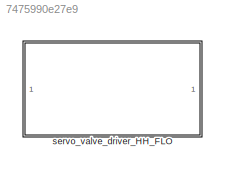
MODEL slx_7475990e27e9
KIND library
CONFIG AbsTol = auto
CONFIG EnableMultiTasking = off
CONFIG FixedStep = auto
CONFIG MaxStep = auto
CONFIG MinStep = auto
CONFIG RelTol = 1e-3
CONFIG SampleTimeConstraint = Unconstrained
CONFIG SolverName = VariableStepAuto
CONFIG StartTime = 0.0
CONFIG StopTime = 10.0
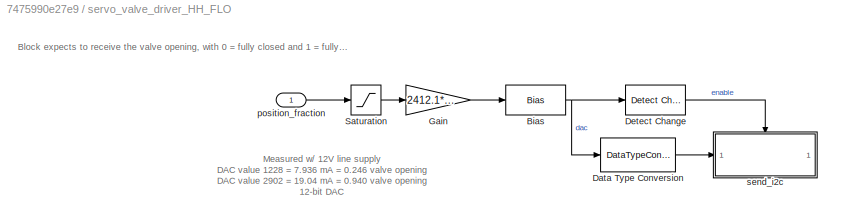
BLOCK [SubSystem] servo_valve_driver_HH_FLO
BLOCK [Bias] servo_valve_driver_HH_FLO/Bias
  Bias = 634.6225
  SaturateOnIntegerOverflow = off
BLOCK [DataTypeConversion] servo_valve_driver_HH_FLO/Data Type Conversion
  OutDataTypeStr = uint16
  RndMeth = Floor
  SaturateOnIntegerOverflow = off
BLOCK [Reference] servo_valve_driver_HH_FLO/Detect Change  REF=simulink/Logic and Bit
Operations/Detect
Change
  SourceBlock = simulink/Logic and Bit\nOperations/Detect\nChange
  SourceType = Detect Change
BLOCK [Gain] servo_valve_driver_HH_FLO/Gain
  Gain = 2412.1*1.0828
BLOCK [Saturate] servo_valve_driver_HH_FLO/Saturation
  LowerLimit = 0
  UpperLimit = 1
  ZeroCross = off
BLOCK [Inport] servo_valve_driver_HH_FLO/position_fraction
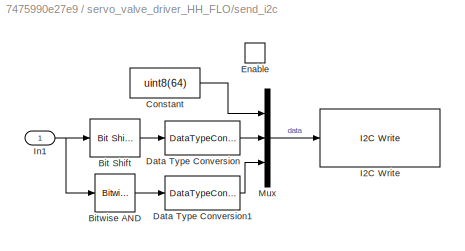
BLOCK [SubSystem] servo_valve_driver_HH_FLO/send_i2c
  TreatAsAtomicUnit = on
BLOCK [Reference] servo_valve_driver_HH_FLO/send_i2c/Bit Shift  REF=hdlsllib/Logic and Bit
Operations/Bit Shift
  SourceBlock = hdlsllib/Logic and Bit\nOperations/Bit Shift
  SourceType = Bit Shift
BLOCK [Reference] servo_valve_driver_HH_FLO/send_i2c/Bitwise AND  REF=simulink/Logic and Bit
Operations/Bitwise
Operator
  LibrarySourceBlock = simulink/Quick Insert/Logic and Bit\nOperations/Bitwise AND
  SourceBlock = simulink/Logic and Bit\nOperations/Bitwise\nOperator
  SourceType = Bitwise Operator
BLOCK [Constant] servo_valve_driver_HH_FLO/send_i2c/Constant
  Value = uint8(64)
BLOCK [DataTypeConversion] servo_valve_driver_HH_FLO/send_i2c/Data Type Conversion
  OutDataTypeStr = uint8
  RndMeth = Floor
  SaturateOnIntegerOverflow = off
BLOCK [DataTypeConversion] servo_valve_driver_HH_FLO/send_i2c/Data Type Conversion1
  OutDataTypeStr = uint8
  RndMeth = Floor
  SaturateOnIntegerOverflow = off
BLOCK [EnablePort] servo_valve_driver_HH_FLO/send_i2c/Enable
BLOCK [Reference] servo_valve_driver_HH_FLO/send_i2c/I2C Write  REF=arduinolib/I2C Write
  SourceBlock = arduinolib/I2C Write
  SourceType = I2C Write
BLOCK [Inport] servo_valve_driver_HH_FLO/send_i2c/In1
BLOCK [Mux] servo_valve_driver_HH_FLO/send_i2c/Mux
  DisplayOption = bar
  Inputs = 3
ANNOTATION servo_valve_driver_HH_FLO: Block expects to receive the valve opening, with 0 = fully closed and 1 = fully open
ANNOTATION servo_valve_driver_HH_FLO: Measured w/ 12V line supply DAC value 1228 = 7.936 mA = 0.246 valve opening DAC value 2902 = 19.04 mA = 0.940 valve opening 12-bit DAC
NET servo_valve_driver_HH_FLO/Bias:1 -> servo_valve_driver_HH_FLO/Data Type Conversion:1, servo_valve_driver_HH_FLO/Detect Change:1
LINE servo_valve_driver_HH_FLO/Data Type Conversion:1 -> servo_valve_driver_HH_FLO/send_i2c:1
LINE servo_valve_driver_HH_FLO/Detect Change:1 -> servo_valve_driver_HH_FLO/send_i2c:enable
LINE servo_valve_driver_HH_FLO/Gain:1 -> servo_valve_driver_HH_FLO/Bias:1
LINE servo_valve_driver_HH_FLO/Saturation:1 -> servo_valve_driver_HH_FLO/Gain:1
LINE servo_valve_driver_HH_FLO/position_fraction:1 -> servo_valve_driver_HH_FLO/Saturation:1
LINE servo_valve_driver_HH_FLO/send_i2c/Bit Shift:1 -> servo_valve_driver_HH_FLO/send_i2c/Data Type Conversion:1
LINE servo_valve_driver_HH_FLO/send_i2c/Bitwise AND:1 -> servo_valve_driver_HH_FLO/send_i2c/Data Type Conversion1:1
LINE servo_valve_driver_HH_FLO/send_i2c/Constant:1 -> servo_valve_driver_HH_FLO/send_i2c/Mux:1
LINE servo_valve_driver_HH_FLO/send_i2c/Data Type Conversion1:1 -> servo_valve_driver_HH_FLO/send_i2c/Mux:3
LINE servo_valve_driver_HH_FLO/send_i2c/Data Type Conversion:1 -> servo_valve_driver_HH_FLO/send_i2c/Mux:2
NET servo_valve_driver_HH_FLO/send_i2c/In1:1 -> servo_valve_driver_HH_FLO/send_i2c/Bit Shift:1, servo_valve_driver_HH_FLO/send_i2c/Bitwise AND:1
LINE servo_valve_driver_HH_FLO/send_i2c/Mux:1 -> servo_valve_driver_HH_FLO/send_i2c/I2C Write:1
note: NET lines group one-source signal fan-out (src -> all destinations, sorted); 1:1 wires keep LINE
